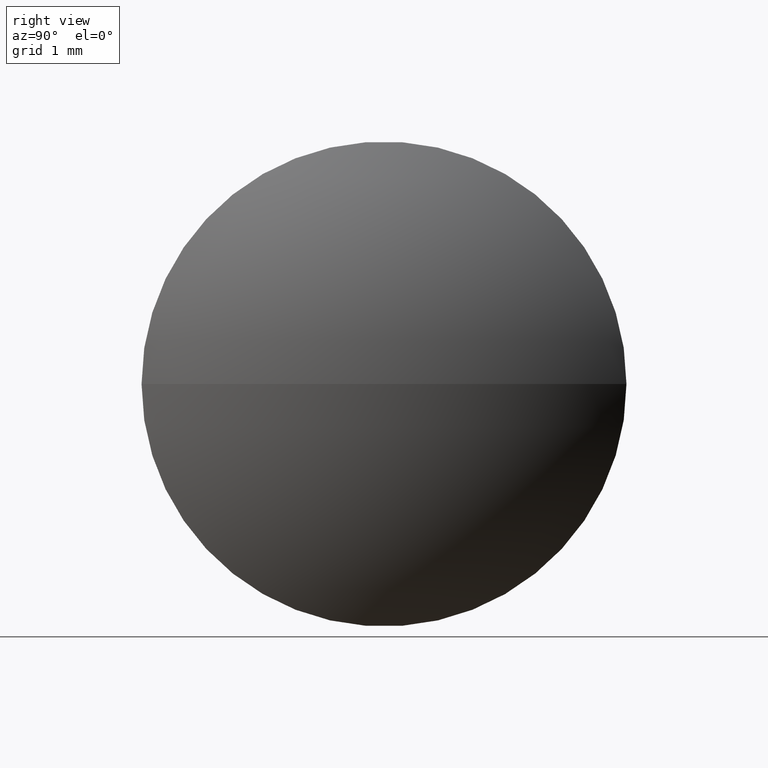
[diagram: clean part render]
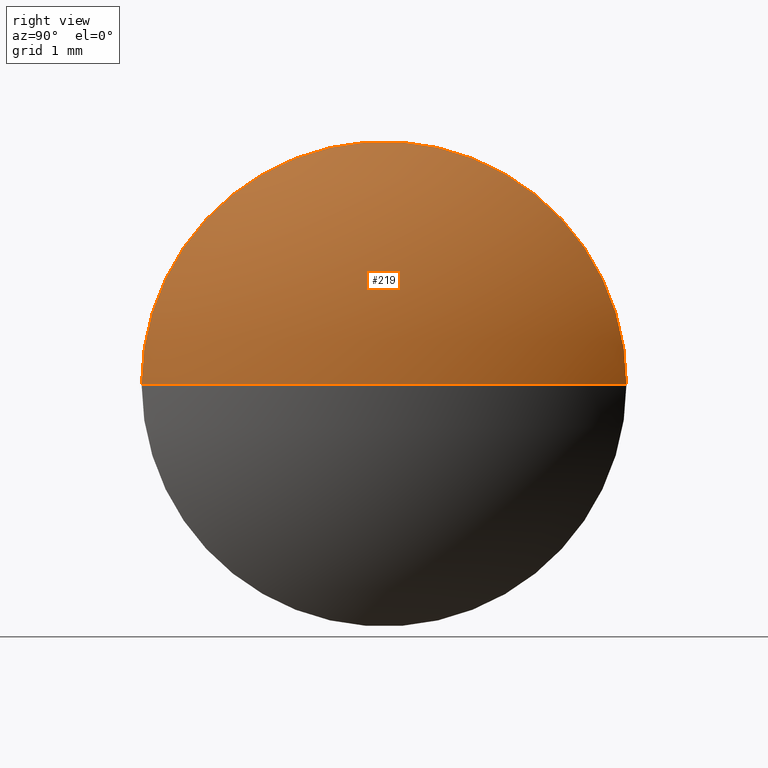
[diagram: same view with one face highlighted and labeled with its STEP entity id]
A machine part, right view. The second image highlights one B-rep face of the part: STEP entity #219.
In plain terms, the highlighted spherical surface has radius 4.202 mm.
Its self-contained STEP definition (entity closure, byte-faithful):
#7 = EDGE_LOOP ( 'NONE', ( #273, #248, #31 ) ) ;
#9 = CARTESIAN_POINT ( 'NONE',  ( 17.51932948320127200, 12.07010098881589100, 0.0000000000000000000 ) ) ;
#19 = SPHERICAL_SURFACE ( 'NONE', #72, 4.201985858065468100 ) ;
#28 = FACE_OUTER_BOUND ( 'NONE', #7, .T. ) ;
#31 = ORIENTED_EDGE ( 'NONE', *, *, #114, .F. ) ;
#37 = CIRCLE ( 'NONE', #236, 4.201985858065468100 ) ;
#50 = DIRECTION ( 'NONE',  ( -2.775557561562889000E-015, -1.000000000000000000, 0.0000000000000000000 ) ) ;
#53 = CARTESIAN_POINT ( 'NONE',  ( 14.14195103958820700, 9.570100988815893200, 0.0000000000000000000 ) ) ;
#54 = VERTEX_POINT ( 'NONE', #230 ) ;
#58 = CARTESIAN_POINT ( 'NONE',  ( 14.14195103958820700, 9.570100988815893200, 0.0000000000000000000 ) ) ;
#61 = DIRECTION ( 'NONE',  ( 0.0000000000000000000, 0.0000000000000000000, -1.000000000000000000 ) ) ;
#65 = CIRCLE ( 'NONE', #98, 4.201985858065468100 ) ;
#72 = AXIS2_PLACEMENT_3D ( 'NONE', #58, #61, #288 ) ;
#88 = VERTEX_POINT ( 'NONE', #151 ) ;
#98 = AXIS2_PLACEMENT_3D ( 'NONE', #53, #154, #99 ) ;
#99 = DIRECTION ( 'NONE',  ( 0.0000000000000000000, 1.000000000000000000, 1.224646799147353000E-016 ) ) ;
#114 = EDGE_CURVE ( 'NONE', #54, #295, #174, .T. ) ;
#137 = EDGE_CURVE ( 'NONE', #88, #54, #65, .T. ) ;
#151 = CARTESIAN_POINT ( 'NONE',  ( 18.34393689765367700, 9.570100988815882600, 0.0000000000000000000 ) ) ;
#153 = DIRECTION ( 'NONE',  ( 1.000000000000000000, 0.0000000000000000000, 0.0000000000000000000 ) ) ;
#154 = DIRECTION ( 'NONE',  ( 2.986685838959564500E-031, 1.224646799147353200E-016, -1.000000000000000000 ) ) ;
#161 = EDGE_CURVE ( 'NONE', #88, #295, #37, .T. ) ;
#174 = CIRCLE ( 'NONE', #175, 2.500000000000002200 ) ;
#175 = AXIS2_PLACEMENT_3D ( 'NONE', #189, #213, #50 ) ;
#189 = CARTESIAN_POINT ( 'NONE',  ( 17.51932948320126500, 9.570100988815887900, 0.0000000000000000000 ) ) ;
#197 = CARTESIAN_POINT ( 'NONE',  ( 14.14195103958820700, 9.570100988815893200, 0.0000000000000000000 ) ) ;
#213 = DIRECTION ( 'NONE',  ( -1.000000000000000000, 2.438814065442388400E-015, -0.0000000000000000000 ) ) ;
#219 = ADVANCED_FACE ( 'NONE', ( #28 ), #19, .T. ) ;
#230 = CARTESIAN_POINT ( 'NONE',  ( 17.51932948320125800, 7.070100988815880800, -3.061616997868388100E-016 ) ) ;
#236 = AXIS2_PLACEMENT_3D ( 'NONE', #197, #285, #153 ) ;
#248 = ORIENTED_EDGE ( 'NONE', *, *, #161, .T. ) ;
#273 = ORIENTED_EDGE ( 'NONE', *, *, #137, .F. ) ;
#285 = DIRECTION ( 'NONE',  ( 0.0000000000000000000, 0.0000000000000000000, 1.000000000000000000 ) ) ;
#288 = DIRECTION ( 'NONE',  ( 2.477005208354672900E-015, 1.000000000000000000, 0.0000000000000000000 ) ) ;
#295 = VERTEX_POINT ( 'NONE', #9 ) ;